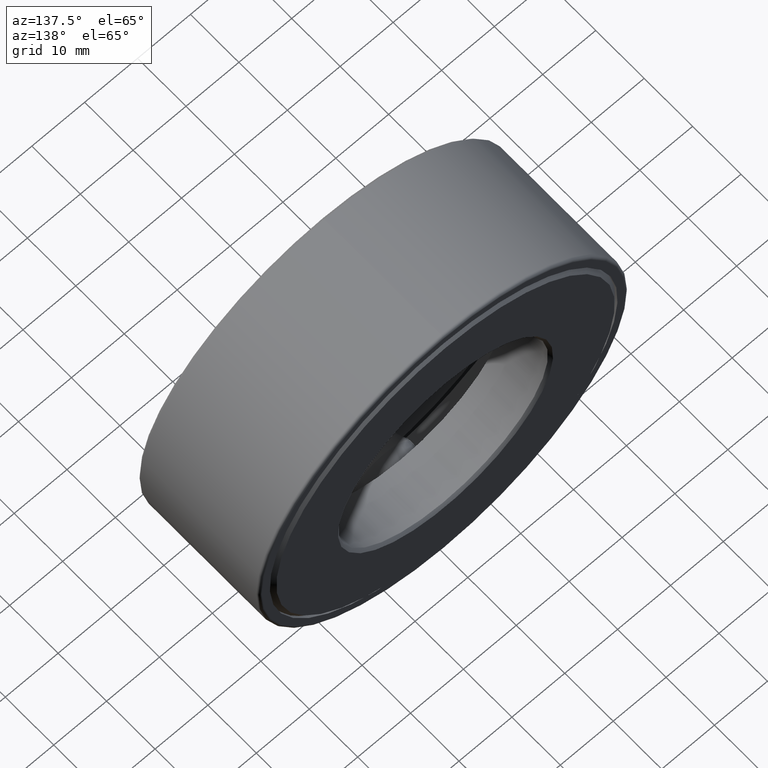
[diagram: clean part render]
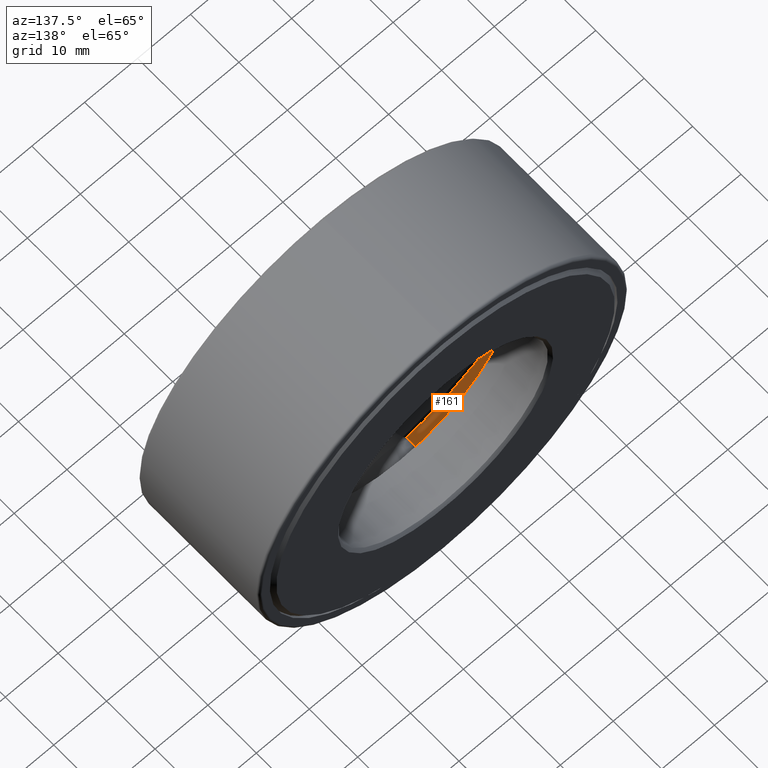
[diagram: same view with one face highlighted and labeled with its STEP entity id]
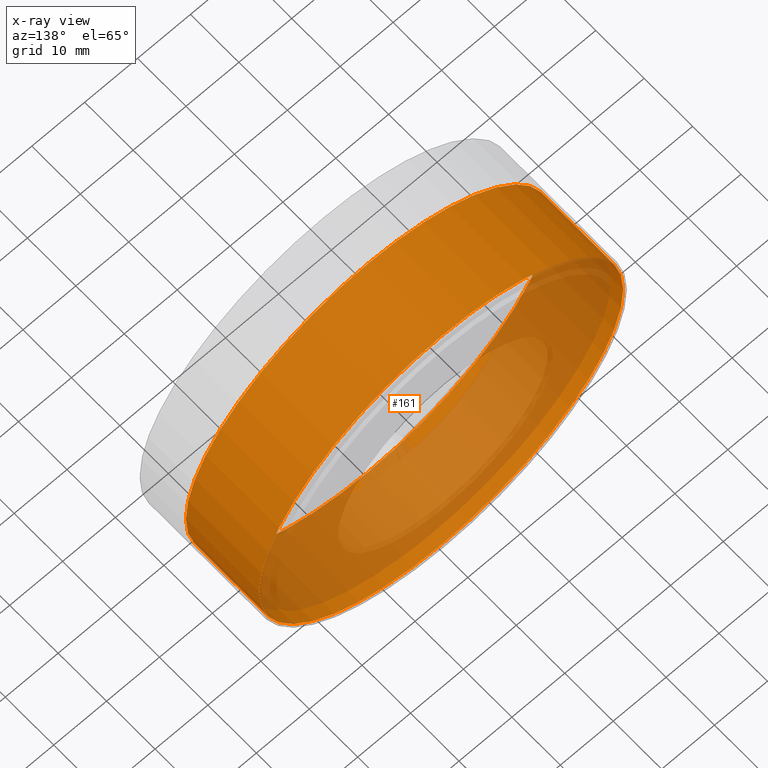
[diagram: x-ray of the same camera — body ghosted, the highlighted face saturated]
A machine part, auxiliary view. The second image highlights one B-rep face of the part: STEP entity #161.
The next image is the same camera in x-ray: the body ghosted, the highlighted face saturated — about 39% of this face is hidden behind the body in this view.
In plain terms, the highlighted cylindrical surface (bore or boss wall) has radius 34.417 mm, axis along (-0, 1, -0).
Its self-contained STEP definition (entity closure, byte-faithful):
#8 = CARTESIAN_POINT ( 'NONE',  ( 0.0000000000000000000, 0.9649999999999999700, 0.0000000000000000000 ) ) ;
#15 = FACE_OUTER_BOUND ( 'NONE', #236, .T. ) ;
#16 = DIRECTION ( 'NONE',  ( -0.0000000000000000000, 1.000000000000000000, -0.0000000000000000000 ) ) ;
#29 = EDGE_CURVE ( 'NONE', #62, #62, #64, .T. ) ;
#59 = DIRECTION ( 'NONE',  ( -0.0000000000000000000, 1.000000000000000000, -0.0000000000000000000 ) ) ;
#62 = VERTEX_POINT ( 'NONE', #335 ) ;
#63 = DIRECTION ( 'NONE',  ( 0.0000000000000000000, 0.0000000000000000000, 1.000000000000000000 ) ) ;
#64 = CIRCLE ( 'NONE', #295, 1.355000000000000000 ) ;
#68 = CARTESIAN_POINT ( 'NONE',  ( 0.0000000000000000000, 0.3687499999999999700, 0.0000000000000000000 ) ) ;
#126 = EDGE_CURVE ( 'NONE', #165, #165, #130, .T. ) ;
#130 = CIRCLE ( 'NONE', #196, 1.355000000000000000 ) ;
#161 = ADVANCED_FACE ( 'NONE', ( #312, #15 ), #570, .F. ) ;
#165 = VERTEX_POINT ( 'NONE', #514 ) ;
#196 = AXIS2_PLACEMENT_3D ( 'NONE', #68, #16, #198 ) ;
#198 = DIRECTION ( 'NONE',  ( 0.0000000000000000000, 0.0000000000000000000, 1.000000000000000000 ) ) ;
#203 = EDGE_LOOP ( 'NONE', ( #313 ) ) ;
#204 = DIRECTION ( 'NONE',  ( 0.0000000000000000000, 0.0000000000000000000, 1.000000000000000000 ) ) ;
#236 = EDGE_LOOP ( 'NONE', ( #516 ) ) ;
#295 = AXIS2_PLACEMENT_3D ( 'NONE', #8, #59, #63 ) ;
#312 = FACE_OUTER_BOUND ( 'NONE', #203, .T. ) ;
#313 = ORIENTED_EDGE ( 'NONE', *, *, #126, .F. ) ;
#335 = CARTESIAN_POINT ( 'NONE',  ( 0.0000000000000000000, 0.9649999999999999700, 1.355000000000000000 ) ) ;
#478 = AXIS2_PLACEMENT_3D ( 'NONE', #490, #573, #204 ) ;
#490 = CARTESIAN_POINT ( 'NONE',  ( 0.0000000000000000000, 0.0000000000000000000, 0.0000000000000000000 ) ) ;
#514 = CARTESIAN_POINT ( 'NONE',  ( 0.0000000000000000000, 0.3687499999999999700, 1.355000000000000000 ) ) ;
#516 = ORIENTED_EDGE ( 'NONE', *, *, #29, .T. ) ;
#570 = CYLINDRICAL_SURFACE ( 'NONE', #478, 1.355000000000000000 ) ;
#573 = DIRECTION ( 'NONE',  ( -0.0000000000000000000, 1.000000000000000000, -0.0000000000000000000 ) ) ;